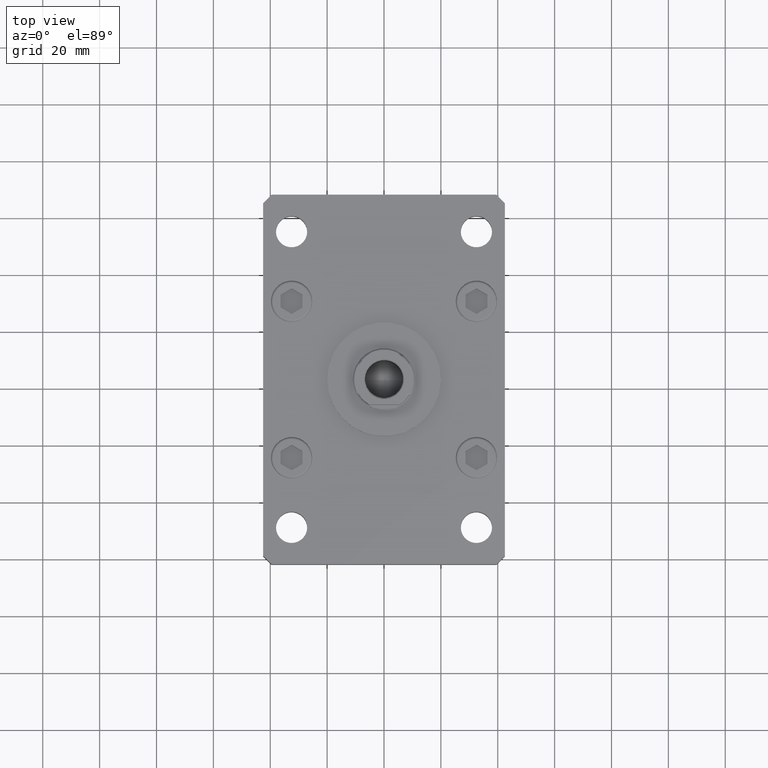
[diagram: clean part render]
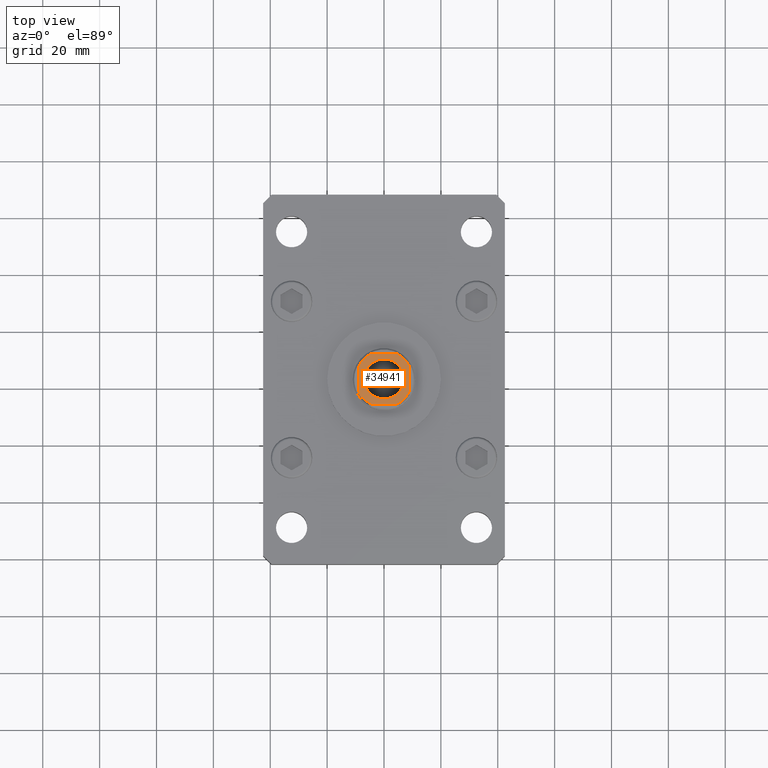
[diagram: same view with one face highlighted and labeled with its STEP entity id]
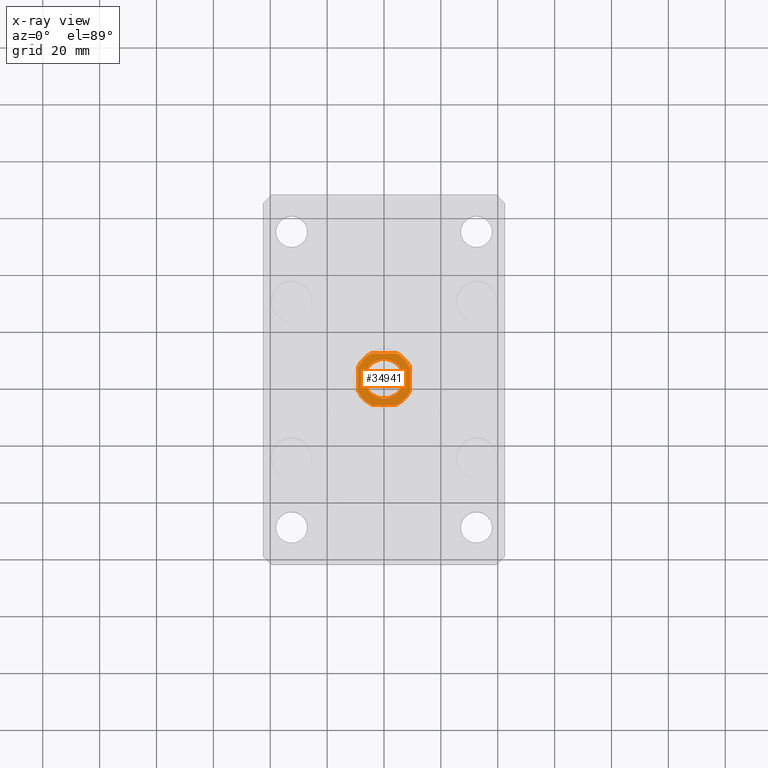
[diagram: x-ray of the same camera — body ghosted, the highlighted face saturated]
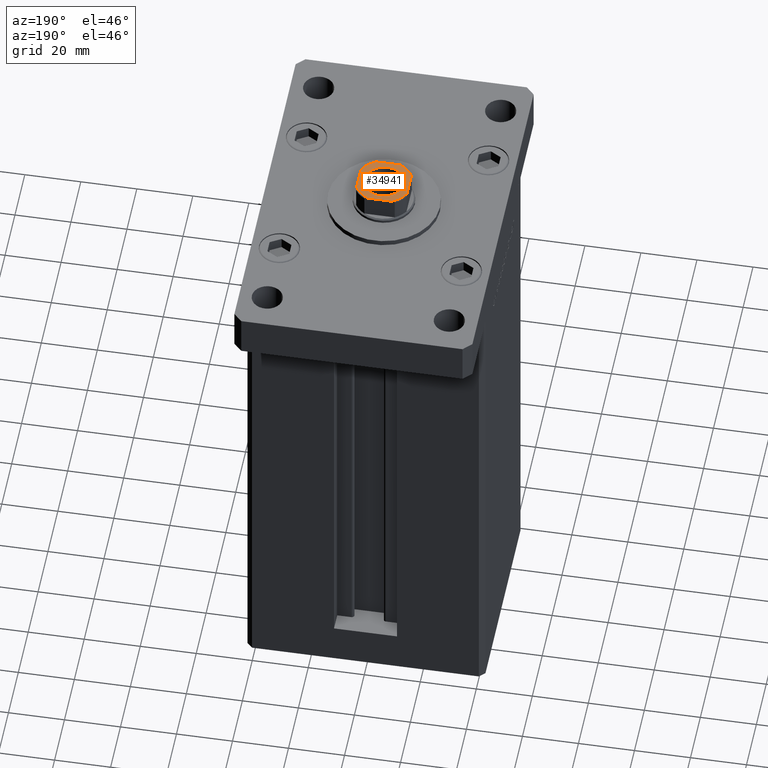
[diagram: same view with one face highlighted and labeled with its STEP entity id]
A machine part, top view. The second image highlights one B-rep face of the part: STEP entity #34941.
The next image is the same camera in x-ray: the body ghosted, the highlighted face saturated — about 0% of this face is hidden behind the body in this view.
A second angle (auxiliary view) of the same face is appended — the face is thin or edge-on in the first view.
In plain terms, the highlighted planar face has unit normal (0, 0, 1).
Its self-contained STEP definition (entity closure, byte-faithful):
#9 = DIRECTION ( 'NONE',  ( 0.000000000000000000, -0.000000000000000000, -1.000000000000000000 ) ) ;
#675 = ORIENTED_EDGE ( 'NONE', *, *, #21433, .T. ) ;
#1317 = CIRCLE ( 'NONE', #8220, 7.050000000000000711 ) ;
#1561 = ORIENTED_EDGE ( 'NONE', *, *, #49168, .T. ) ;
#2375 = CARTESIAN_POINT ( 'NONE',  ( -8.999999999999998224, -9.000000000000001776, 170.7500000000000000 ) ) ;
#3233 = VERTEX_POINT ( 'NONE', #33365 ) ;
#3295 = EDGE_CURVE ( 'NONE', #3233, #17950, #45861, .T. ) ;
#3320 = CARTESIAN_POINT ( 'NONE',  ( 0.000000000000000000, 0.000000000000000000, 170.7500000000000000 ) ) ;
#4327 = LINE ( 'NONE', #45284, #19603 ) ;
#5048 = VERTEX_POINT ( 'NONE', #28047 ) ;
#5754 = CIRCLE ( 'NONE', #38695, 10.00000000000000000 ) ;
#6074 = VERTEX_POINT ( 'NONE', #45989 ) ;
#6222 = FACE_BOUND ( 'NONE', #29074, .T. ) ;
#6604 = AXIS2_PLACEMENT_3D ( 'NONE', #15466, #39860, #39592 ) ;
#6760 = FACE_OUTER_BOUND ( 'NONE', #44107, .T. ) ;
#7470 = EDGE_CURVE ( 'NONE', #17950, #5048, #33417, .T. ) ;
#7690 = EDGE_CURVE ( 'NONE', #8066, #3233, #36027, .T. ) ;
#8066 = VERTEX_POINT ( 'NONE', #42399 ) ;
#8220 = AXIS2_PLACEMENT_3D ( 'NONE', #21285, #30675, #47238 ) ;
#8728 = EDGE_CURVE ( 'NONE', #6074, #23620, #5754, .T. ) ;
#13434 = VECTOR ( 'NONE', #21970, 1000.000000000000000 ) ;
#15177 = DIRECTION ( 'NONE',  ( -0.000000000000000000, 0.000000000000000000, 1.000000000000000000 ) ) ;
#15257 = DIRECTION ( 'NONE',  ( -0.000000000000000000, 0.000000000000000000, 1.000000000000000000 ) ) ;
#15466 = CARTESIAN_POINT ( 'NONE',  ( 0.000000000000000000, 0.000000000000000000, 170.7500000000000000 ) ) ;
#16738 = CARTESIAN_POINT ( 'NONE',  ( 0.000000000000000000, 0.000000000000000000, 170.7500000000000000 ) ) ;
#17950 = VERTEX_POINT ( 'NONE', #26164 ) ;
#18703 = ORIENTED_EDGE ( 'NONE', *, *, #7690, .T. ) ;
#18932 = LINE ( 'NONE', #2375, #33339 ) ;
#19219 = DIRECTION ( 'NONE',  ( -0.000000000000000000, 0.000000000000000000, 1.000000000000000000 ) ) ;
#19256 = PLANE ( 'NONE',  #25329 ) ;
#19603 = VECTOR ( 'NONE', #25444, 1000.000000000000000 ) ;
#19608 = DIRECTION ( 'NONE',  ( 1.000000000000000000, 0.000000000000000000, 0.000000000000000000 ) ) ;
#21068 = DIRECTION ( 'NONE',  ( 1.000000000000000000, 0.000000000000000000, 0.000000000000000000 ) ) ;
#21285 = CARTESIAN_POINT ( 'NONE',  ( 0.000000000000000000, 0.000000000000000000, 170.7500000000000000 ) ) ;
#21433 = EDGE_CURVE ( 'NONE', #34972, #29616, #42409, .T. ) ;
#21970 = DIRECTION ( 'NONE',  ( -9.637352644315595243E-17, 1.000000000000000000, -0.000000000000000000 ) ) ;
#23353 = AXIS2_PLACEMENT_3D ( 'NONE', #16738, #53365, #21068 ) ;
#23620 = VERTEX_POINT ( 'NONE', #31617 ) ;
#23884 = EDGE_CURVE ( 'NONE', #49665, #40338, #1317, .T. ) ;
#24993 = ORIENTED_EDGE ( 'NONE', *, *, #46275, .T. ) ;
#25329 = AXIS2_PLACEMENT_3D ( 'NONE', #52338, #15177, #31706 ) ;
#25444 = DIRECTION ( 'NONE',  ( 9.637352644315595243E-17, -1.000000000000000000, 0.000000000000000000 ) ) ;
#26164 = CARTESIAN_POINT ( 'NONE',  ( 9.000000000000000000, 4.358898943540675752, 170.7500000000000000 ) ) ;
#26286 = ORIENTED_EDGE ( 'NONE', *, *, #42795, .T. ) ;
#28047 = CARTESIAN_POINT ( 'NONE',  ( 4.358898943540677529, 8.999999999999998224, 170.7500000000000000 ) ) ;
#28158 = AXIS2_PLACEMENT_3D ( 'NONE', #53184, #9, #32549 ) ;
#28386 = CARTESIAN_POINT ( 'NONE',  ( 0.000000000000000000, 0.000000000000000000, 170.7500000000000000 ) ) ;
#28958 = VECTOR ( 'NONE', #39604, 1000.000000000000000 ) ;
#29074 = EDGE_LOOP ( 'NONE', ( #26286, #53177 ) ) ;
#29616 = VERTEX_POINT ( 'NONE', #45206 ) ;
#30675 = DIRECTION ( 'NONE',  ( 0.000000000000000000, -0.000000000000000000, -1.000000000000000000 ) ) ;
#31079 = ORIENTED_EDGE ( 'NONE', *, *, #7470, .T. ) ;
#31617 = CARTESIAN_POINT ( 'NONE',  ( -4.358898943540671311, -9.000000000000001776, 170.7500000000000000 ) ) ;
#31706 = DIRECTION ( 'NONE',  ( 1.000000000000000000, 0.000000000000000000, 0.000000000000000000 ) ) ;
#32549 = DIRECTION ( 'NONE',  ( 1.000000000000000000, 0.000000000000000000, 0.000000000000000000 ) ) ;
#33339 = VECTOR ( 'NONE', #43061, 1000.000000000000000 ) ;
#33365 = CARTESIAN_POINT ( 'NONE',  ( 9.000000000000001776, -4.358898943540675752, 170.7500000000000000 ) ) ;
#33417 = CIRCLE ( 'NONE', #40376, 10.00000000000000000 ) ;
#34941 = ADVANCED_FACE ( 'NONE', ( #6222, #6760 ), #19256, .T. ) ;
#34972 = VERTEX_POINT ( 'NONE', #40114 ) ;
#36027 = CIRCLE ( 'NONE', #6604, 10.00000000000000000 ) ;
#38695 = AXIS2_PLACEMENT_3D ( 'NONE', #28386, #19219, #40618 ) ;
#38896 = CARTESIAN_POINT ( 'NONE',  ( 7.050000000000000711, 0.000000000000000000, 170.7500000000000000 ) ) ;
#39238 = ORIENTED_EDGE ( 'NONE', *, *, #3295, .T. ) ;
#39326 = LINE ( 'NONE', #51295, #28958 ) ;
#39592 = DIRECTION ( 'NONE',  ( 1.000000000000000000, 0.000000000000000000, 0.000000000000000000 ) ) ;
#39604 = DIRECTION ( 'NONE',  ( -1.000000000000000000, -0.000000000000000000, -0.000000000000000000 ) ) ;
#39860 = DIRECTION ( 'NONE',  ( -0.000000000000000000, 0.000000000000000000, 1.000000000000000000 ) ) ;
#40114 = CARTESIAN_POINT ( 'NONE',  ( -4.358898943540678417, 8.999999999999998224, 170.7500000000000000 ) ) ;
#40338 = VERTEX_POINT ( 'NONE', #38896 ) ;
#40376 = AXIS2_PLACEMENT_3D ( 'NONE', #3320, #15257, #19608 ) ;
#40618 = DIRECTION ( 'NONE',  ( 1.000000000000000000, 0.000000000000000000, 0.000000000000000000 ) ) ;
#40791 = EDGE_CURVE ( 'NONE', #5048, #34972, #39326, .T. ) ;
#40941 = ORIENTED_EDGE ( 'NONE', *, *, #8728, .T. ) ;
#42399 = CARTESIAN_POINT ( 'NONE',  ( 4.358898943540671311, -9.000000000000001776, 170.7500000000000000 ) ) ;
#42409 = CIRCLE ( 'NONE', #23353, 10.00000000000000000 ) ;
#42759 = CARTESIAN_POINT ( 'NONE',  ( -7.050000000000000711, 8.633759933988840961E-16, 170.7500000000000000 ) ) ;
#42795 = EDGE_CURVE ( 'NONE', #40338, #49665, #42891, .T. ) ;
#42891 = CIRCLE ( 'NONE', #28158, 7.050000000000000711 ) ;
#43061 = DIRECTION ( 'NONE',  ( 1.000000000000000000, 0.000000000000000000, 0.000000000000000000 ) ) ;
#44107 = EDGE_LOOP ( 'NONE', ( #1561, #40941, #24993, #18703, #39238, #31079, #52603, #675 ) ) ;
#45206 = CARTESIAN_POINT ( 'NONE',  ( -9.000000000000000000, 4.358898943540674864, 170.7500000000000000 ) ) ;
#45284 = CARTESIAN_POINT ( 'NONE',  ( -9.000000000000000000, 8.999999999999998224, 170.7500000000000000 ) ) ;
#45861 = LINE ( 'NONE', #46132, #13434 ) ;
#45989 = CARTESIAN_POINT ( 'NONE',  ( -9.000000000000000000, -4.358898943540675752, 170.7500000000000000 ) ) ;
#46132 = CARTESIAN_POINT ( 'NONE',  ( 9.000000000000000000, 8.999999999999998224, 170.7500000000000000 ) ) ;
#46275 = EDGE_CURVE ( 'NONE', #23620, #8066, #18932, .T. ) ;
#47238 = DIRECTION ( 'NONE',  ( 1.000000000000000000, 0.000000000000000000, 0.000000000000000000 ) ) ;
#49168 = EDGE_CURVE ( 'NONE', #29616, #6074, #4327, .T. ) ;
#49665 = VERTEX_POINT ( 'NONE', #42759 ) ;
#51295 = CARTESIAN_POINT ( 'NONE',  ( -9.000000000000000000, 8.999999999999998224, 170.7500000000000000 ) ) ;
#52338 = CARTESIAN_POINT ( 'NONE',  ( 0.000000000000000000, 0.000000000000000000, 170.7500000000000000 ) ) ;
#52603 = ORIENTED_EDGE ( 'NONE', *, *, #40791, .T. ) ;
#53177 = ORIENTED_EDGE ( 'NONE', *, *, #23884, .T. ) ;
#53184 = CARTESIAN_POINT ( 'NONE',  ( 0.000000000000000000, 0.000000000000000000, 170.7500000000000000 ) ) ;
#53365 = DIRECTION ( 'NONE',  ( -0.000000000000000000, 0.000000000000000000, 1.000000000000000000 ) ) ;